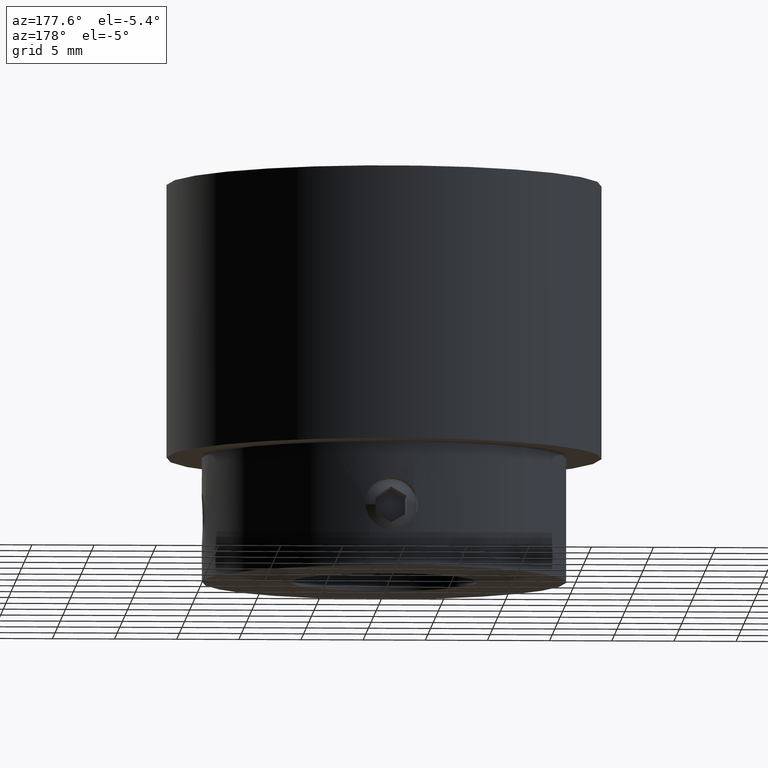
[diagram: clean part render]
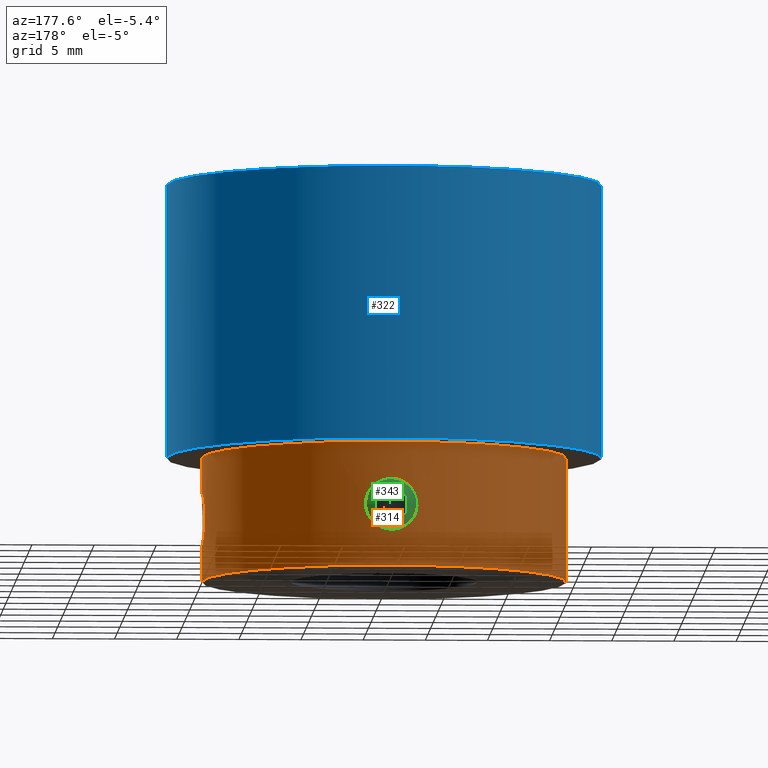
[diagram: same view with three faces highlighted in distinct colors, each labeled with its STEP entity id]
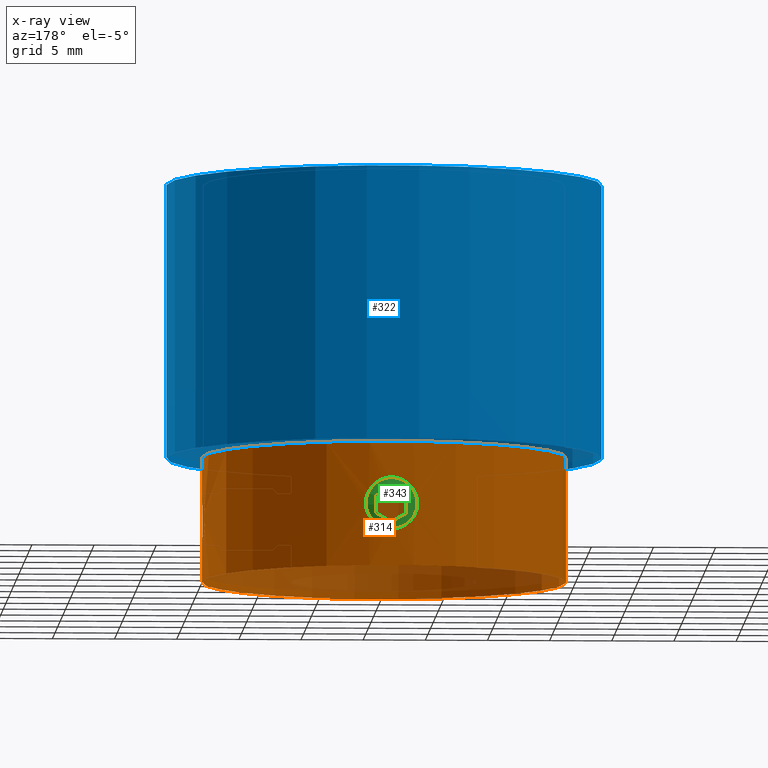
[diagram: x-ray of the same camera — body ghosted, the three highlighted faces saturated]
A machine part, auxiliary view with three faces highlighted in distinct colors.
The next image is the same camera in x-ray (body ghosted, the three faces saturated) — at least one of them is partly hidden behind the body in this view.
Their STEP definitions:

[orange] entity #314 — the highlighted cylindrical surface (bore or boss wall) has radius 14.65 mm, axis along (-0, 0, -1).
#314 = ADVANCED_FACE( '', ( #357, #358, #359, #360 ), #361, .T. );
#357 = FACE_BOUND( '', #450, .T. );
#358 = FACE_OUTER_BOUND( '', #451, .T. );
#359 = FACE_BOUND( '', #452, .T. );
#360 = FACE_OUTER_BOUND( '', #453, .T. );
#361 = CYLINDRICAL_SURFACE( '', #454, 14.6500000000000 );
#450 = EDGE_LOOP( '', ( #542 ) );
#451 = EDGE_LOOP( '', ( #543 ) );
#452 = EDGE_LOOP( '', ( #544 ) );
#453 = EDGE_LOOP( '', ( #545 ) );
#454 = AXIS2_PLACEMENT_3D( '', #546, #547, #548 );
#542 = ORIENTED_EDGE( '', *, *, #758, .F. );
#543 = ORIENTED_EDGE( '', *, *, #759, .T. );
#544 = ORIENTED_EDGE( '', *, *, #760, .F. );
#545 = ORIENTED_EDGE( '', *, *, #761, .T. );
#546 = CARTESIAN_POINT( '', ( 0.000000000000000, 0.000000000000000, -32.0000000000000 ) );
#547 = DIRECTION( '', ( -0.000000000000000, 0.000000000000000, -1.00000000000000 ) );
#548 = DIRECTION( '', ( 1.00000000000000, 0.000000000000000, 0.000000000000000 ) );
#758 = EDGE_CURVE( '', #816, #816, #817, .T. );
#759 = EDGE_CURVE( '', #818, #818, #819, .T. );
#760 = EDGE_CURVE( '', #820, #820, #821, .T. );
#761 = EDGE_CURVE( '', #822, #822, #823, .F. );
#816 = VERTEX_POINT( '', #916 );
#817 = B_SPLINE_CURVE_WITH_KNOTS( '', 3, ( #917, #918, #919, #920, #921, #922, #923, #924, #925, #926, #927, #928, #929, #930, #931, #932, #933, #934, #935, #936, #937, #938, #939, #940, #941, #942, #943, #944, #945, #946, #947, #948, #949, #950, #951, #952, #953, #954, #955, #956, #957, #958, #959, #960, #961, #962, #963, #964, #965, #966, #967, #968, #969, #970, #971, #972 ), .UNSPECIFIED., .T., .F., ( 2, 2, 2, 2, 2, 2, 2, 2, 2, 2, 2, 2, 2, 2, 2, 2, 2, 2, 2, 2, 2, 2, 2, 2, 2, 2, 2, 2, 2, 2 ), ( -0.000821676350584550, 0.000000000000000, 0.000410838175292270, 0.000821676350584540, 0.00123251452587681, 0.00164335270116908, 0.00246502905175362, 0.00328670540233816, 0.00369754357763043, 0.00410838175292270, 0.00451921992821497, 0.00493005810350724, 0.00534089627879951, 0.00575173445409178, 0.00616257262938405, 0.00657341080467632, 0.00739508715526086, 0.00780592533055314, 0.00821676350584541, 0.00862760168113768, 0.00903843985642995, 0.00944927803172222, 0.00986011620701449, 0.0102709543823068, 0.0106817925575990, 0.0110926307328913, 0.0115034689081836, 0.0123251452587681, 0.0131468216093527, 0.0135576597846449 ), .UNSPECIFIED. );
#818 = VERTEX_POINT( '', #973 );
#819 = CIRCLE( '', #974, 14.6500000000000 );
#820 = VERTEX_POINT( '', #975 );
#821 = B_SPLINE_CURVE_WITH_KNOTS( '', 3, ( #976, #977, #978, #979, #980, #981, #982, #983, #984, #985, #986, #987, #988, #989, #990, #991, #992, #993, #994, #995, #996, #997, #998, #999, #1000, #1001, #1002, #1003, #1004, #1005, #1006, #1007, #1008, #1009, #1010, #1011, #1012, #1013, #1014, #1015, #1016, #1017, #1018, #1019, #1020, #1021, #1022, #1023, #1024, #1025, #1026, #1027, #1028, #1029, #1030, #1031 ), .UNSPECIFIED., .T., .F., ( 2, 2, 2, 2, 2, 2, 2, 2, 2, 2, 2, 2, 2, 2, 2, 2, 2, 2, 2, 2, 2, 2, 2, 2, 2, 2, 2, 2, 2, 2 ), ( -0.000821676350584553, 0.000000000000000, 0.000410838175292266, 0.000821676350584532, 0.00123251452587680, 0.00164335270116906, 0.00246502905175360, 0.00328670540233813, 0.00369754357763040, 0.00410838175292267, 0.00451921992821494, 0.00493005810350722, 0.00534089627879949, 0.00575173445409176, 0.00616257262938403, 0.00657341080467630, 0.00739508715526085, 0.00780592533055312, 0.00821676350584539, 0.00862760168113766, 0.00903843985642993, 0.00944927803172220, 0.00986011620701448, 0.0102709543823067, 0.0106817925575990, 0.0110926307328913, 0.0115034689081836, 0.0123251452587681, 0.0131468216093527, 0.0135576597846449 ), .UNSPECIFIED. );
#822 = VERTEX_POINT( '', #1032 );
#823 = CIRCLE( '', #1033, 14.6500000000000 );
#916 = CARTESIAN_POINT( '', ( -0.243478406430909, 14.6479765928814, -24.9141624546475 ) );
#917 = CARTESIAN_POINT( '', ( -0.519418364710327, 14.6433899238021, -24.9463727394141 ) );
#918 = CARTESIAN_POINT( '', ( -0.105508427291202, 14.6502699274211, -24.8980573122643 ) );
#919 = CARTESIAN_POINT( '', ( 0.0317397346344909, 14.6506021199626, -24.8957755457430 ) );
#920 = CARTESIAN_POINT( '', ( 0.304850898942806, 14.6474644842587, -24.9177334718962 ) );
#921 = CARTESIAN_POINT( '', ( 0.442197359134204, 14.6439245500962, -24.9424726951000 ) );
#922 = CARTESIAN_POINT( '', ( 0.707057397646882, 14.6335277554583, -25.0178226741113 ) );
#923 = CARTESIAN_POINT( '', ( 0.834337503996029, 14.6267349898457, -25.0679747872220 ) );
#924 = CARTESIAN_POINT( '', ( 1.07872740959252, 14.6107440847325, -25.1930169704233 ) );
#925 = CARTESIAN_POINT( '', ( 1.19615882141795, 14.6014828669101, -25.2685496164717 ) );
#926 = CARTESIAN_POINT( '', ( 1.51795734395931, 14.5727381386209, -25.5232905063535 ) );
#927 = CARTESIAN_POINT( '', ( 1.70028944801077, 14.5516169365638, -25.7375698224308 ) );
#928 = CARTESIAN_POINT( '', ( 1.96680097547192, 14.5179968865677, -26.2148833951973 ) );
#929 = CARTESIAN_POINT( '', ( 2.05375641781997, 14.5053654337650, -26.4829811950649 ) );
#930 = CARTESIAN_POINT( '', ( 2.10167842108939, 14.4984726182459, -26.8915851420446 ) );
#931 = CARTESIAN_POINT( '', ( 2.10425247930975, 14.4980945518212, -27.0315952989257 ) );
#932 = CARTESIAN_POINT( '', ( 2.08219835797159, 14.5012783618648, -27.3054942841623 ) );
#933 = CARTESIAN_POINT( '', ( 2.05795019636429, 14.5047847598242, -27.4402567247901 ) );
#934 = CARTESIAN_POINT( '', ( 1.98278229079199, 14.5152510941722, -27.7053788923411 ) );
#935 = CARTESIAN_POINT( '', ( 1.93173107023037, 14.5222195949914, -27.8349386695447 ) );
#936 = CARTESIAN_POINT( '', ( 1.80710964418293, 14.5382530459043, -28.0784536353017 ) );
#937 = CARTESIAN_POINT( '', ( 1.73298386881928, 14.5473960510101, -28.1941194972935 ) );
#938 = CARTESIAN_POINT( '', ( 1.56127958764008, 14.5668243280321, -28.4112265986094 ) );
#939 = CARTESIAN_POINT( '', ( 1.46618019280933, 14.5768217899481, -28.5096358634330 ) );
#940 = CARTESIAN_POINT( '', ( 1.25810840185989, 14.5962522964925, -28.6869641511067 ) );
#941 = CARTESIAN_POINT( '', ( 1.14372449177842, 14.6057819254927, -28.7665740856300 ) );
#942 = CARTESIAN_POINT( '', ( 0.903718623746249, 14.6225942984560, -28.9005742190736 ) );
#943 = CARTESIAN_POINT( '', ( 0.778395101863427, 14.6298907933326, -28.9552406531888 ) );
#944 = CARTESIAN_POINT( '', ( 0.517089737823087, 14.6414555889256, -29.0399713599767 ) );
#945 = CARTESIAN_POINT( '', ( 0.380402973195521, 14.6456934817792, -29.0698035243122 ) );
#946 = CARTESIAN_POINT( '', ( -0.0280691412506341, 14.6525044978767, -29.1176364958120 ) );
#947 = CARTESIAN_POINT( '', ( -0.309383957449192, 14.6491039570944, -29.0950452108861 ) );
#948 = CARTESIAN_POINT( '', ( -0.704425427493390, 14.6336479085641, -28.9830577486036 ) );
#949 = CARTESIAN_POINT( '', ( -0.833603625909540, 14.6267818831057, -28.9323896417995 ) );
#950 = CARTESIAN_POINT( '', ( -1.07919452186856, 14.6107146452542, -28.8067550793709 ) );
#951 = CARTESIAN_POINT( '', ( -1.19421785315003, 14.6016430815121, -28.7327988702013 ) );
#952 = CARTESIAN_POINT( '', ( -1.40911404048712, 14.5824735412602, -28.5630565652769 ) );
#953 = CARTESIAN_POINT( '', ( -1.50967863345884, 14.5722804351165, -28.4661630135471 ) );
#954 = CARTESIAN_POINT( '', ( -1.68734763786873, 14.5527778999399, -28.2576253446851 ) );
#955 = CARTESIAN_POINT( '', ( -1.76544861792705, 14.5433930683319, -28.1454898091186 ) );
#956 = CARTESIAN_POINT( '', ( -1.89989445048148, 14.5264411278046, -27.9051832976612 ) );
#957 = CARTESIAN_POINT( '', ( -1.95549701017002, 14.5189650063005, -27.7776574737393 ) );
#958 = CARTESIAN_POINT( '', ( -2.03986980178060, 14.5073513986098, -27.5173498768049 ) );
#959 = CARTESIAN_POINT( '', ( -2.06943123725237, 14.5031107804122, -27.3830243392548 ) );
#960 = CARTESIAN_POINT( '', ( -2.10183641243854, 14.4984499740480, -27.1074103604170 ) );
#961 = CARTESIAN_POINT( '', ( -2.10425426869887, 14.4980941585357, -26.9702274352413 ) );
#962 = CARTESIAN_POINT( '', ( -2.08254697933814, 14.5012281664676, -26.6970635185400 ) );
#963 = CARTESIAN_POINT( '', ( -2.05790365498903, 14.5047912325208, -26.5595816913224 ) );
#964 = CARTESIAN_POINT( '', ( -1.98283466956351, 14.5152438086795, -26.2948032806283 ) );
#965 = CARTESIAN_POINT( '', ( -1.93281118596845, 14.5220764735504, -26.1674720128793 ) );
#966 = CARTESIAN_POINT( '', ( -1.80791811846585, 14.5381531241480, -25.9228305579590 ) );
#967 = CARTESIAN_POINT( '', ( -1.73252381881398, 14.5474445468402, -25.8054009324820 ) );
#968 = CARTESIAN_POINT( '', ( -1.47815084997175, 14.5762373941055, -25.4834602134402 ) );
#969 = CARTESIAN_POINT( '', ( -1.26401065179807, 14.5973272921311, -25.3008819653575 ) );
#970 = CARTESIAN_POINT( '', ( -0.786907696629095, 14.6308052846875, -25.0339121839317 ) );
#971 = CARTESIAN_POINT( '', ( -0.519418364710327, 14.6433899238021, -24.9463727394141 ) );
#972 = CARTESIAN_POINT( '', ( -0.105508427291202, 14.6502699274211, -24.8980573122643 ) );
#973 = CARTESIAN_POINT( '', ( 14.6500000000000, 0.000000000000000, -32.0000000000000 ) );
#974 = AXIS2_PLACEMENT_3D( '', #1324, #1325, #1326 );
#975 = CARTESIAN_POINT( '', ( 14.6479765928814, 0.243478406430910, -24.9141624546475 ) );
#976 = CARTESIAN_POINT( '', ( 14.6433899238021, 0.519418364710332, -24.9463727394140 ) );
#977 = CARTESIAN_POINT( '', ( 14.6502699274211, 0.105508427291203, -24.8980573122643 ) );
#978 = CARTESIAN_POINT( '', ( 14.6506021199626, -0.0317397346344901, -24.8957755457430 ) );
#979 = CARTESIAN_POINT( '', ( 14.6474644842587, -0.304850898942805, -24.9177334718962 ) );
#980 = CARTESIAN_POINT( '', ( 14.6439245500962, -0.442197359134203, -24.9424726951000 ) );
#981 = CARTESIAN_POINT( '', ( 14.6335277554583, -0.707057397646881, -25.0178226741113 ) );
#982 = CARTESIAN_POINT( '', ( 14.6267349898457, -0.834337503996028, -25.0679747872220 ) );
#983 = CARTESIAN_POINT( '', ( 14.6107440847325, -1.07872740959252, -25.1930169704233 ) );
#984 = CARTESIAN_POINT( '', ( 14.6014828669101, -1.19615882141795, -25.2685496164717 ) );
#985 = CARTESIAN_POINT( '', ( 14.5727381386209, -1.51795734395931, -25.5232905063535 ) );
#986 = CARTESIAN_POINT( '', ( 14.5516169365638, -1.70028944801077, -25.7375698224308 ) );
#987 = CARTESIAN_POINT( '', ( 14.5179968865677, -1.96680097547192, -26.2148833951973 ) );
#988 = CARTESIAN_POINT( '', ( 14.5053654337650, -2.05375641781997, -26.4829811950649 ) );
#989 = CARTESIAN_POINT( '', ( 14.4984726182459, -2.10167842108939, -26.8915851420446 ) );
#990 = CARTESIAN_POINT( '', ( 14.4980945518212, -2.10425247930975, -27.0315952989257 ) );
#991 = CARTESIAN_POINT( '', ( 14.5012783618648, -2.08219835797159, -27.3054942841623 ) );
#992 = CARTESIAN_POINT( '', ( 14.5047847598242, -2.05795019636429, -27.4402567247901 ) );
#993 = CARTESIAN_POINT( '', ( 14.5152510941722, -1.98278229079199, -27.7053788923412 ) );
#994 = CARTESIAN_POINT( '', ( 14.5222195949914, -1.93173107023036, -27.8349386695447 ) );
#995 = CARTESIAN_POINT( '', ( 14.5382530459043, -1.80710964418292, -28.0784536353017 ) );
#996 = CARTESIAN_POINT( '', ( 14.5473960510101, -1.73298386881928, -28.1941194972935 ) );
#997 = CARTESIAN_POINT( '', ( 14.5668243280322, -1.56127958764008, -28.4112265986094 ) );
#998 = CARTESIAN_POINT( '', ( 14.5768217899481, -1.46618019280932, -28.5096358634330 ) );
#999 = CARTESIAN_POINT( '', ( 14.5962522964925, -1.25810840185989, -28.6869641511067 ) );
#1000 = CARTESIAN_POINT( '', ( 14.6057819254927, -1.14372449177842, -28.7665740856300 ) );
#1001 = CARTESIAN_POINT( '', ( 14.6225942984560, -0.903718623746248, -28.9005742190736 ) );
#1002 = CARTESIAN_POINT( '', ( 14.6298907933326, -0.778395101863425, -28.9552406531888 ) );
#1003 = CARTESIAN_POINT( '', ( 14.6414555889256, -0.517089737823086, -29.0399713599767 ) );
#1004 = CARTESIAN_POINT( '', ( 14.6456934817792, -0.380402973195520, -29.0698035243122 ) );
#1005 = CARTESIAN_POINT( '', ( 14.6525044978767, 0.0280691412506365, -29.1176364958120 ) );
#1006 = CARTESIAN_POINT( '', ( 14.6491039570944, 0.309383957449193, -29.0950452108861 ) );
#1007 = CARTESIAN_POINT( '', ( 14.6336479085641, 0.704425427493392, -28.9830577486036 ) );
#1008 = CARTESIAN_POINT( '', ( 14.6267818831057, 0.833603625909542, -28.9323896417995 ) );
#1009 = CARTESIAN_POINT( '', ( 14.6107146452542, 1.07919452186856, -28.8067550793709 ) );
#1010 = CARTESIAN_POINT( '', ( 14.6016430815121, 1.19421785315003, -28.7327988702013 ) );
#1011 = CARTESIAN_POINT( '', ( 14.5824735412602, 1.40911404048713, -28.5630565652769 ) );
#1012 = CARTESIAN_POINT( '', ( 14.5722804351165, 1.50967863345884, -28.4661630135471 ) );
#1013 = CARTESIAN_POINT( '', ( 14.5527778999399, 1.68734763786873, -28.2576253446851 ) );
#1014 = CARTESIAN_POINT( '', ( 14.5433930683319, 1.76544861792705, -28.1454898091186 ) );
#1015 = CARTESIAN_POINT( '', ( 14.5264411278047, 1.89989445048148, -27.9051832976612 ) );
#1016 = CARTESIAN_POINT( '', ( 14.5189650063005, 1.95549701017003, -27.7776574737393 ) );
#1017 = CARTESIAN_POINT( '', ( 14.5073513986098, 2.03986980178060, -27.5173498768049 ) );
#1018 = CARTESIAN_POINT( '', ( 14.5031107804122, 2.06943123725237, -27.3830243392547 ) );
#1019 = CARTESIAN_POINT( '', ( 14.4984499740480, 2.10183641243854, -27.1074103604170 ) );
#1020 = CARTESIAN_POINT( '', ( 14.4980941585357, 2.10425426869887, -26.9702274352413 ) );
#1021 = CARTESIAN_POINT( '', ( 14.5012281664676, 2.08254697933814, -26.6970635185400 ) );
#1022 = CARTESIAN_POINT( '', ( 14.5047912325208, 2.05790365498903, -26.5595816913224 ) );
#1023 = CARTESIAN_POINT( '', ( 14.5152438086795, 1.98283466956351, -26.2948032806283 ) );
#1024 = CARTESIAN_POINT( '', ( 14.5220764735504, 1.93281118596845, -26.1674720128793 ) );
#1025 = CARTESIAN_POINT( '', ( 14.5381531241480, 1.80791811846585, -25.9228305579590 ) );
#1026 = CARTESIAN_POINT( '', ( 14.5474445468402, 1.73252381881398, -25.8054009324820 ) );
#1027 = CARTESIAN_POINT( '', ( 14.5762373941055, 1.47815084997175, -25.4834602134402 ) );
#1028 = CARTESIAN_POINT( '', ( 14.5973272921311, 1.26401065179807, -25.3008819653575 ) );
#1029 = CARTESIAN_POINT( '', ( 14.6308052846875, 0.786907696629094, -25.0339121839317 ) );
#1030 = CARTESIAN_POINT( '', ( 14.6433899238021, 0.519418364710332, -24.9463727394140 ) );
#1031 = CARTESIAN_POINT( '', ( 14.6502699274211, 0.105508427291203, -24.8980573122643 ) );
#1032 = CARTESIAN_POINT( '', ( 14.6500000000000, 0.000000000000000, -22.0000000000000 ) );
#1033 = AXIS2_PLACEMENT_3D( '', #1327, #1328, #1329 );
#1324 = CARTESIAN_POINT( '', ( 0.000000000000000, 0.000000000000000, -32.0000000000000 ) );
#1325 = DIRECTION( '', ( 0.000000000000000, 0.000000000000000, 1.00000000000000 ) );
#1326 = DIRECTION( '', ( 1.00000000000000, 0.000000000000000, -0.000000000000000 ) );
#1327 = CARTESIAN_POINT( '', ( 0.000000000000000, 0.000000000000000, -22.0000000000000 ) );
#1328 = DIRECTION( '', ( 0.000000000000000, 0.000000000000000, 1.00000000000000 ) );
#1329 = DIRECTION( '', ( 1.00000000000000, 0.000000000000000, -0.000000000000000 ) );

[blue] entity #322 — the highlighted cylindrical surface (bore or boss wall) has radius 17.5 mm, axis along (-0, 0, -1).
#322 = ADVANCED_FACE( '', ( #385, #386 ), #387, .T. );
#385 = FACE_OUTER_BOUND( '', #478, .T. );
#386 = FACE_OUTER_BOUND( '', #479, .T. );
#387 = CYLINDRICAL_SURFACE( '', #480, 17.5000000000000 );
#478 = EDGE_LOOP( '', ( #586 ) );
#479 = EDGE_LOOP( '', ( #587 ) );
#480 = AXIS2_PLACEMENT_3D( '', #588, #589, #590 );
#586 = ORIENTED_EDGE( '', *, *, #768, .T. );
#587 = ORIENTED_EDGE( '', *, *, #769, .F. );
#588 = CARTESIAN_POINT( '', ( 0.000000000000000, 0.000000000000000, -22.0000000000000 ) );
#589 = DIRECTION( '', ( -0.000000000000000, 0.000000000000000, -1.00000000000000 ) );
#590 = DIRECTION( '', ( 1.00000000000000, 0.000000000000000, 0.000000000000000 ) );
#768 = EDGE_CURVE( '', #836, #836, #837, .T. );
#769 = EDGE_CURVE( '', #838, #838, #839, .T. );
#836 = VERTEX_POINT( '', #1160 );
#837 = CIRCLE( '', #1161, 17.5000000000000 );
#838 = VERTEX_POINT( '', #1162 );
#839 = CIRCLE( '', #1163, 17.5000000000000 );
#1160 = CARTESIAN_POINT( '', ( 17.5000000000000, 0.000000000000000, -22.0000000000000 ) );
#1161 = AXIS2_PLACEMENT_3D( '', #1342, #1343, #1344 );
#1162 = CARTESIAN_POINT( '', ( 17.5000000000000, 0.000000000000000, 0.000000000000000 ) );
#1163 = AXIS2_PLACEMENT_3D( '', #1345, #1346, #1347 );
#1342 = CARTESIAN_POINT( '', ( 0.000000000000000, 0.000000000000000, -22.0000000000000 ) );
#1343 = DIRECTION( '', ( 0.000000000000000, 0.000000000000000, 1.00000000000000 ) );
#1344 = DIRECTION( '', ( 1.00000000000000, 0.000000000000000, 0.000000000000000 ) );
#1345 = CARTESIAN_POINT( '', ( 0.000000000000000, 0.000000000000000, 0.000000000000000 ) );
#1346 = DIRECTION( '', ( 0.000000000000000, 0.000000000000000, 1.00000000000000 ) );
#1347 = DIRECTION( '', ( 1.00000000000000, 0.000000000000000, 0.000000000000000 ) );

[green] entity #343 — the highlighted conical surface has half-angle 63.435 deg.
#343 = ADVANCED_FACE( '', ( #423, #424 ), #425, .T. );
#423 = FACE_OUTER_BOUND( '', #516, .T. );
#424 = FACE_BOUND( '', #517, .T. );
#425 = CONICAL_SURFACE( '', #518, 2.50000000000000, 1.10714871779409 );
#516 = EDGE_LOOP( '', ( #682 ) );
#517 = EDGE_LOOP( '', ( #683, #684, #685, #686, #687, #688 ) );
#518 = AXIS2_PLACEMENT_3D( '', #689, #690, #691 );
#682 = ORIENTED_EDGE( '', *, *, #794, .F. );
#683 = ORIENTED_EDGE( '', *, *, #795, .T. );
#684 = ORIENTED_EDGE( '', *, *, #796, .T. );
#685 = ORIENTED_EDGE( '', *, *, #797, .T. );
#686 = ORIENTED_EDGE( '', *, *, #798, .T. );
#687 = ORIENTED_EDGE( '', *, *, #799, .T. );
#688 = ORIENTED_EDGE( '', *, *, #800, .T. );
#689 = CARTESIAN_POINT( '', ( 7.82516008024372E-016, 12.9794562247530, -27.0000000000000 ) );
#690 = DIRECTION( '', ( -6.12323399573677E-017, -1.00000000000000, -0.000000000000000 ) );
#691 = DIRECTION( '', ( 1.00000000000000, -6.12323399573677E-017, 0.000000000000000 ) );
#794 = EDGE_CURVE( '', #880, #880, #881, .T. );
#795 = EDGE_CURVE( '', #882, #883, #884, .T. );
#796 = EDGE_CURVE( '', #883, #885, #886, .T. );
#797 = EDGE_CURVE( '', #885, #887, #888, .T. );
#798 = EDGE_CURVE( '', #887, #889, #890, .F. );
#799 = EDGE_CURVE( '', #889, #891, #892, .T. );
#800 = EDGE_CURVE( '', #891, #882, #893, .T. );
#880 = VERTEX_POINT( '', #1246 );
#881 = CIRCLE( '', #1247, 2.50000000000000 );
#882 = VERTEX_POINT( '', #1248 );
#883 = VERTEX_POINT( '', #1249 );
#884 = B_SPLINE_CURVE_WITH_KNOTS( '', 3, ( #1250, #1251, #1252, #1253, #1254, #1255 ), .UNSPECIFIED., .F., .F., ( 4, 2, 4 ), ( 0.00129322886666107, 0.00202279493422372, 0.00275236100178638 ), .UNSPECIFIED. );
#885 = VERTEX_POINT( '', #1256 );
#886 = B_SPLINE_CURVE_WITH_KNOTS( '', 3, ( #1257, #1258, #1259, #1260, #1261, #1262 ), .UNSPECIFIED., .F., .F., ( 4, 2, 4 ), ( 2.34956166162920E-007, 0.000723983021226004, 0.00144773108628584 ), .UNSPECIFIED. );
#887 = VERTEX_POINT( '', #1263 );
#888 = B_SPLINE_CURVE_WITH_KNOTS( '', 3, ( #1264, #1265, #1266, #1267, #1268, #1269 ), .UNSPECIFIED., .F., .F., ( 4, 2, 4 ), ( 2.34956166162949E-007, 0.000723983021226004, 0.00144773108628584 ), .UNSPECIFIED. );
#889 = VERTEX_POINT( '', #1270 );
#890 = B_SPLINE_CURVE_WITH_KNOTS( '', 3, ( #1271, #1272, #1273, #1274, #1275, #1276 ), .UNSPECIFIED., .F., .F., ( 4, 2, 4 ), ( 0.00129322886666107, 0.00202279493422372, 0.00275236100178638 ), .UNSPECIFIED. );
#891 = VERTEX_POINT( '', #1277 );
#892 = B_SPLINE_CURVE_WITH_KNOTS( '', 3, ( #1278, #1279, #1280, #1281, #1282, #1283 ), .UNSPECIFIED., .F., .F., ( 4, 2, 4 ), ( 2.34956166162920E-007, 0.000723983021226003, 0.00144773108628584 ), .UNSPECIFIED. );
#893 = B_SPLINE_CURVE_WITH_KNOTS( '', 3, ( #1284, #1285, #1286, #1287, #1288, #1289 ), .UNSPECIFIED., .F., .F., ( 4, 2, 4 ), ( 2.34956166162955E-007, 0.000723983021226004, 0.00144773108628584 ), .UNSPECIFIED. );
#1246 = CARTESIAN_POINT( '', ( 2.50000000000000, 12.9794562247530, -27.0000000000000 ) );
#1247 = AXIS2_PLACEMENT_3D( '', #1375, #1376, #1377 );
#1248 = CARTESIAN_POINT( '', ( 1.25000000000000, 13.5077683882659, -27.7216878364870 ) );
#1249 = CARTESIAN_POINT( '', ( 1.25000000000000, 13.5077683882659, -26.2783121635130 ) );
#1250 = CARTESIAN_POINT( '', ( 1.25000000000000, 13.5077683882659, -27.7216878364870 ) );
#1251 = CARTESIAN_POINT( '', ( 1.25000000000000, 13.5669527628119, -27.4849503383034 ) );
#1252 = CARTESIAN_POINT( '', ( 1.25000000000000, 13.6044237950848, -27.2423718736572 ) );
#1253 = CARTESIAN_POINT( '', ( 1.25000000000000, 13.6044886096023, -26.7582975950863 ) );
#1254 = CARTESIAN_POINT( '', ( 1.25000000000000, 13.5664621904248, -26.5130873721472 ) );
#1255 = CARTESIAN_POINT( '', ( 1.25000000000000, 13.5077683882662, -26.2783121635129 ) );
#1256 = CARTESIAN_POINT( '', ( 8.14865798024210E-016, 13.5077683882659, -25.5566243270259 ) );
#1257 = CARTESIAN_POINT( '', ( 1.25000000000000, 13.5077683882659, -26.2783121635130 ) );
#1258 = CARTESIAN_POINT( '', ( 1.04464258962185, 13.5670499663469, -26.1597490073511 ) );
#1259 = CARTESIAN_POINT( '', ( 0.837672393265536, 13.6041142935196, -26.0402547087705 ) );
#1260 = CARTESIAN_POINT( '', ( 0.418400168062405, 13.6047932391959, -25.7981877766857 ) );
#1261 = CARTESIAN_POINT( '', ( 0.206142050132830, 13.5672764723338, -25.6756404951614 ) );
#1262 = CARTESIAN_POINT( '', ( -1.94191802340429E-014, 13.5077683882661, -25.5566243270259 ) );
#1263 = CARTESIAN_POINT( '', ( -1.25000000000000, 13.5077683882659, -26.2783121635130 ) );
#1264 = CARTESIAN_POINT( '', ( 1.12287149634916E-015, 13.5077683882659, -25.5566243270259 ) );
#1265 = CARTESIAN_POINT( '', ( -0.205357410378148, 13.5670499663469, -25.6751874831878 ) );
#1266 = CARTESIAN_POINT( '', ( -0.412327606734464, 13.6041142935196, -25.7946817817684 ) );
#1267 = CARTESIAN_POINT( '', ( -0.831599831937595, 13.6047932391959, -26.0367487138532 ) );
#1268 = CARTESIAN_POINT( '', ( -1.04385794986717, 13.5672764723338, -26.1592959953775 ) );
#1269 = CARTESIAN_POINT( '', ( -1.25000000000002, 13.5077683882661, -26.2783121635130 ) );
#1270 = CARTESIAN_POINT( '', ( -1.25000000000000, 13.5077683882659, -27.7216878364870 ) );
#1271 = CARTESIAN_POINT( '', ( -1.25000000000000, 13.5077683882659, -27.7216878364870 ) );
#1272 = CARTESIAN_POINT( '', ( -1.25000000000000, 13.5669527628119, -27.4849503383034 ) );
#1273 = CARTESIAN_POINT( '', ( -1.25000000000000, 13.6044237950848, -27.2423718736572 ) );
#1274 = CARTESIAN_POINT( '', ( -1.25000000000000, 13.6044886096023, -26.7582975950863 ) );
#1275 = CARTESIAN_POINT( '', ( -1.25000000000000, 13.5664621904248, -26.5130873721472 ) );
#1276 = CARTESIAN_POINT( '', ( -1.25000000000000, 13.5077683882662, -26.2783121635129 ) );
#1277 = CARTESIAN_POINT( '', ( 1.04009535531436E-015, 13.5077683882659, -28.4433756729741 ) );
#1278 = CARTESIAN_POINT( '', ( -1.25000000000000, 13.5077683882659, -27.7216878364870 ) );
#1279 = CARTESIAN_POINT( '', ( -1.04464258962185, 13.5670499663469, -27.8402509926489 ) );
#1280 = CARTESIAN_POINT( '', ( -0.837672393265534, 13.6041142935196, -27.9597452912295 ) );
#1281 = CARTESIAN_POINT( '', ( -0.418400168062403, 13.6047932391959, -28.2018122233142 ) );
#1282 = CARTESIAN_POINT( '', ( -0.206142050132828, 13.5672764723338, -28.3243595048386 ) );
#1283 = CARTESIAN_POINT( '', ( 2.10963929439562E-014, 13.5077683882661, -28.4433756729741 ) );
#1284 = CARTESIAN_POINT( '', ( 4.94578356761909E-016, 13.5077683882659, -28.4433756729741 ) );
#1285 = CARTESIAN_POINT( '', ( 0.205357410378149, 13.5670499663469, -28.3248125168122 ) );
#1286 = CARTESIAN_POINT( '', ( 0.412327606734466, 13.6041142935196, -28.2053182182316 ) );
#1287 = CARTESIAN_POINT( '', ( 0.831599831937596, 13.6047932391959, -27.9632512861468 ) );
#1288 = CARTESIAN_POINT( '', ( 1.04385794986717, 13.5672764723338, -27.8407040046225 ) );
#1289 = CARTESIAN_POINT( '', ( 1.25000000000002, 13.5077683882661, -27.7216878364870 ) );
#1375 = CARTESIAN_POINT( '', ( 7.82516008024372E-016, 12.9794562247530, -27.0000000000000 ) );
#1376 = DIRECTION( '', ( -6.12323399573677E-017, -1.00000000000000, 0.000000000000000 ) );
#1377 = DIRECTION( '', ( 1.00000000000000, -6.12323399573677E-017, 0.000000000000000 ) );